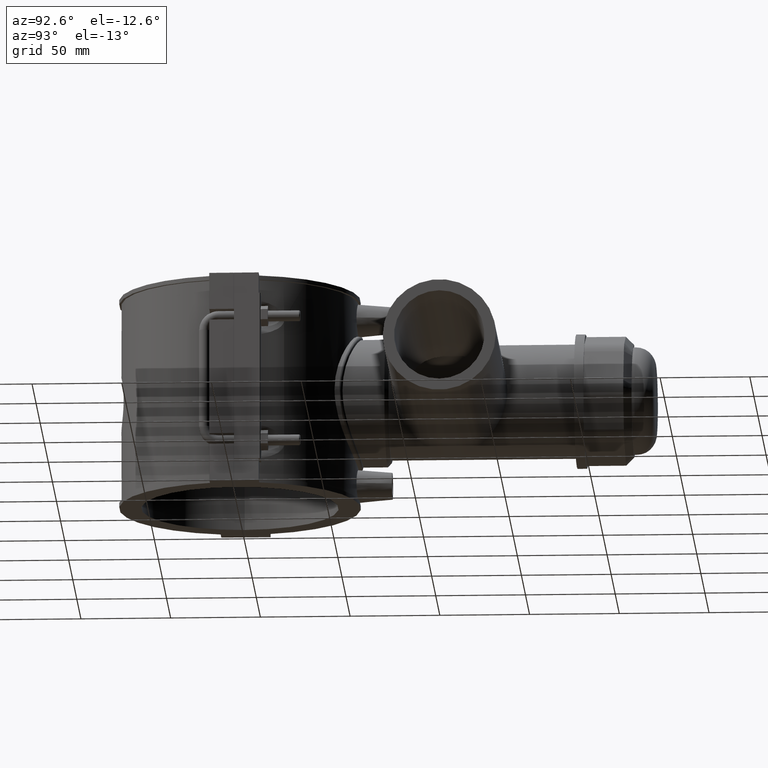
[diagram: clean part render]
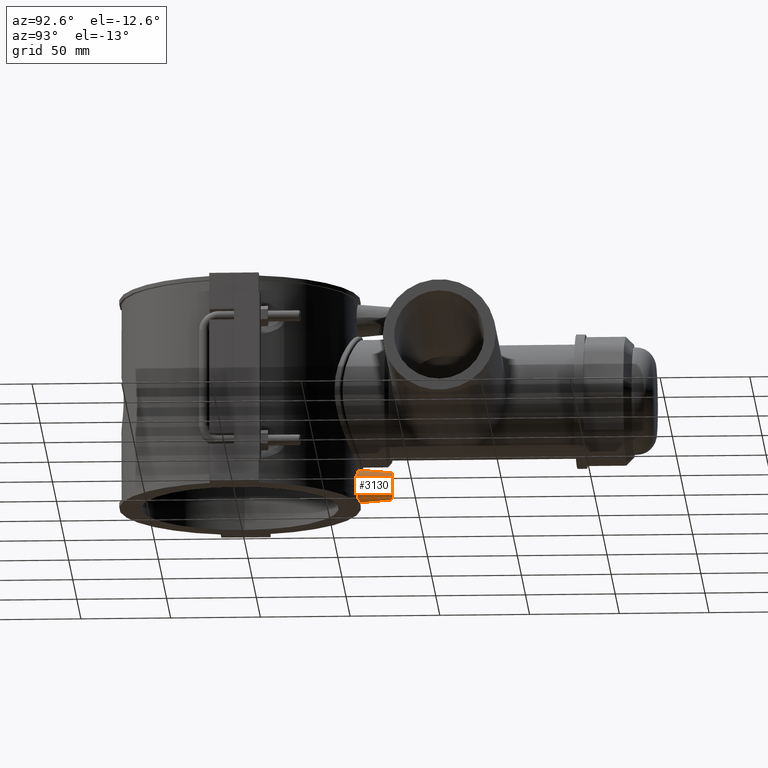
[diagram: same view with one face highlighted and labeled with its STEP entity id]
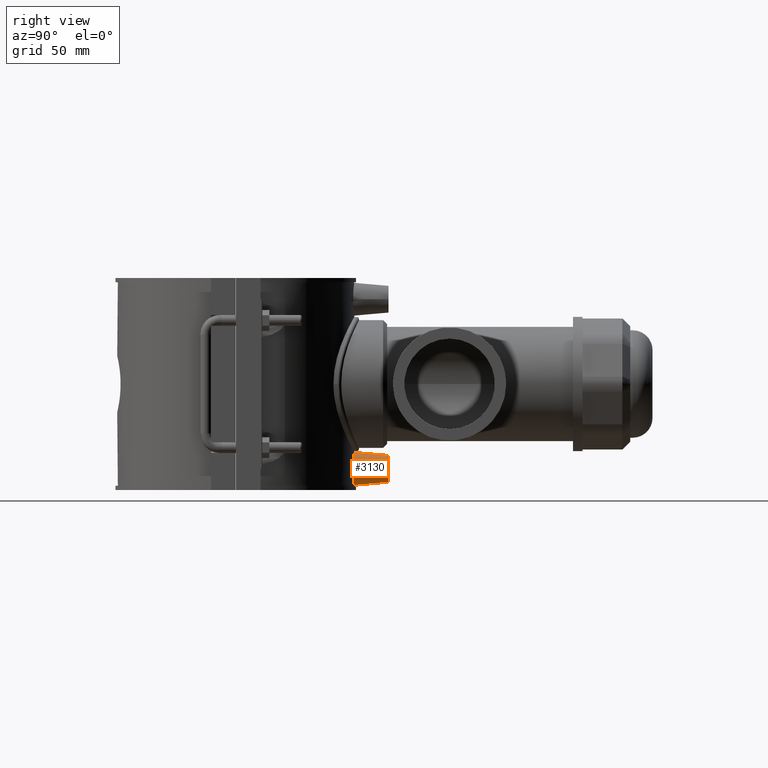
[diagram: same view with one face highlighted and labeled with its STEP entity id]
A machine part, auxiliary view. The second image highlights one B-rep face of the part: STEP entity #3130.
A second angle (right view) of the same face is appended — the face is thin or edge-on in the first view.
In plain terms, the highlighted conical surface has half-angle 5 deg.
Its self-contained STEP definition (entity closure, byte-faithful):
#35=CONICAL_SURFACE('',#3386,7.5,5.);
#634=FACE_BOUND('',#1083,.T.);
#672=B_SPLINE_CURVE_WITH_KNOTS('',3,(#5434,#5435,#5436,#5437,#5438,#5439,
#5440,#5441,#5442,#5443,#5444,#5445,#5446,#5447,#5448,#5449,#5450,#5451,
#5452,#5453,#5454,#5455,#5456,#5457,#5458,#5459,#5460,#5461,#5462,#5463,
#5464,#5465,#5466,#5467),.UNSPECIFIED.,.T.,.F.,(4,2,2,2,2,2,2,2,2,2,2,2,
2,2,2,2,4),(0.,0.346935904986798,0.693871809973595,1.04030921731693,1.38674662466027,
1.73318403200361,2.07962143934695,2.42655734433375,2.77349324932054,3.12042915430734,
3.46736505929414,3.81380246663748,4.16023987398082,4.50667728132415,4.85311468866749,
5.20005059365429,5.54698649864109),.UNSPECIFIED.);
#861=FACE_OUTER_BOUND('',#1082,.T.);
#1082=EDGE_LOOP('',(#2515));
#1083=EDGE_LOOP('',(#2516));
#1254=CIRCLE('',#3385,7.5);
#1414=VERTEX_POINT('',#5433);
#1504=VERTEX_POINT('',#6016);
#1752=EDGE_CURVE('',#1414,#1414,#672,.T.);
#1876=EDGE_CURVE('',#1504,#1504,#1254,.T.);
#2515=ORIENTED_EDGE('',*,*,#1876,.T.);
#2516=ORIENTED_EDGE('',*,*,#1752,.F.);
#3130=ADVANCED_FACE('',(#861,#634),#35,.T.);
#3385=AXIS2_PLACEMENT_3D('',#6017,#4040,#4041);
#3386=AXIS2_PLACEMENT_3D('',#6018,#4042,#4043);
#4040=DIRECTION('center_axis',(0.,-1.,0.));
#4041=DIRECTION('ref_axis',(1.,0.,0.));
#4042=DIRECTION('center_axis',(0.,-1.,0.));
#4043=DIRECTION('ref_axis',(1.,0.,0.));
#5433=CARTESIAN_POINT('',(9.21889149209569,65.3529803425748,-47.2));
#5434=CARTESIAN_POINT('Ctrl Pts',(9.21889149209569,65.3529803425748,-47.2));
#5435=CARTESIAN_POINT('Ctrl Pts',(9.21889149209569,65.3529803425748,-46.0435469833774));
#5436=CARTESIAN_POINT('Ctrl Pts',(8.98509660190144,65.3872751603227,-44.8119297781224));
#5437=CARTESIAN_POINT('Ctrl Pts',(8.03868301556763,65.5103601412207,-42.5506935355608));
#5438=CARTESIAN_POINT('Ctrl Pts',(7.32619281653862,65.5972977842866,-41.5209202636936));
#5439=CARTESIAN_POINT('Ctrl Pts',(5.68787926987002,65.7595974634724,-39.8987494664931));
#5440=CARTESIAN_POINT('Ctrl Pts',(4.65283917326547,65.8455692822516,-39.1970628078988));
#5441=CARTESIAN_POINT('Ctrl Pts',(2.38634954577356,65.9666070224349,-38.2665218689298));
#5442=CARTESIAN_POINT('Ctrl Pts',(1.15479135781113,66.,-38.0377153930075));
#5443=CARTESIAN_POINT('Ctrl Pts',(-1.15479135781113,66.,-38.0377153930075));
#5444=CARTESIAN_POINT('Ctrl Pts',(-2.38634954577356,65.9666070224349,-38.2665218689298));
#5445=CARTESIAN_POINT('Ctrl Pts',(-4.65283917326547,65.8455692822516,-39.1970628078988));
#5446=CARTESIAN_POINT('Ctrl Pts',(-5.68787926987002,65.7595974634724,-39.8987494664931));
#5447=CARTESIAN_POINT('Ctrl Pts',(-7.32619281653862,65.5972977842866,-41.5209202636936));
#5448=CARTESIAN_POINT('Ctrl Pts',(-8.03868301556763,65.5103601412207,-42.5506935355608));
#5449=CARTESIAN_POINT('Ctrl Pts',(-8.98509660190144,65.3872751603227,-44.8119297781224));
#5450=CARTESIAN_POINT('Ctrl Pts',(-9.21889149209569,65.3529803425748,-46.0435469833774));
#5451=CARTESIAN_POINT('Ctrl Pts',(-9.21889149209569,65.3529803425748,-48.3564530166227));
#5452=CARTESIAN_POINT('Ctrl Pts',(-8.98509660190144,65.3872751603227,-49.5880702218776));
#5453=CARTESIAN_POINT('Ctrl Pts',(-8.03868301556763,65.5103601412207,-51.8493064644393));
#5454=CARTESIAN_POINT('Ctrl Pts',(-7.32619281653862,65.5972977842866,-52.8790797363064));
#5455=CARTESIAN_POINT('Ctrl Pts',(-5.68787926987002,65.7595974634724,-54.501250533507));
#5456=CARTESIAN_POINT('Ctrl Pts',(-4.65283917326547,65.8455692822516,-55.2029371921012));
#5457=CARTESIAN_POINT('Ctrl Pts',(-2.38634954577356,65.9666070224349,-56.1334781310702));
#5458=CARTESIAN_POINT('Ctrl Pts',(-1.15479135781113,66.,-56.3622846069926));
#5459=CARTESIAN_POINT('Ctrl Pts',(1.15479135781112,66.,-56.3622846069926));
#5460=CARTESIAN_POINT('Ctrl Pts',(2.38634954577355,65.9666070224349,-56.1334781310702));
#5461=CARTESIAN_POINT('Ctrl Pts',(4.65283917326546,65.8455692822516,-55.2029371921012));
#5462=CARTESIAN_POINT('Ctrl Pts',(5.68787926987002,65.7595974634724,-54.501250533507));
#5463=CARTESIAN_POINT('Ctrl Pts',(7.32619281653862,65.5972977842866,-52.8790797363065));
#5464=CARTESIAN_POINT('Ctrl Pts',(8.03868301556763,65.5103601412207,-51.8493064644393));
#5465=CARTESIAN_POINT('Ctrl Pts',(8.98509660190144,65.3872751603227,-49.5880702218776));
#5466=CARTESIAN_POINT('Ctrl Pts',(9.21889149209569,65.3529803425748,-48.3564530166227));
#5467=CARTESIAN_POINT('Ctrl Pts',(9.21889149209569,65.3529803425748,-47.2));
#6016=CARTESIAN_POINT('',(-7.5,85.,-47.2));
#6017=CARTESIAN_POINT('Origin',(0.,85.,-47.2));
#6018=CARTESIAN_POINT('Origin',(0.,85.,-47.2));